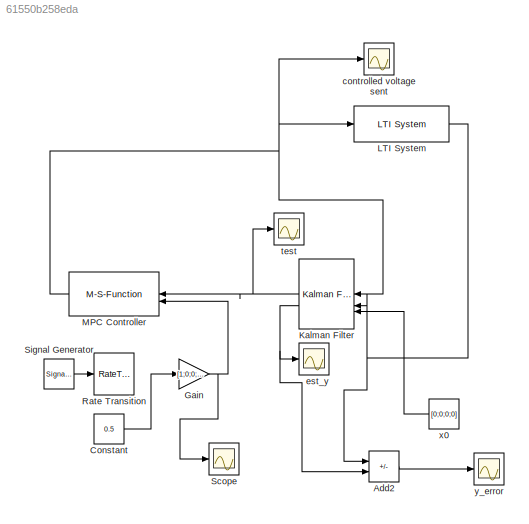
MODEL slx_61550b258eda
KIND model
CONFIG AbsTol = auto
CONFIG EnableMultiTasking = on
CONFIG FixedStep = 0.01
CONFIG MaxStep = auto
CONFIG MinStep = auto
CONFIG RelTol = 1e-3
CONFIG SampleTimeConstraint = Unconstrained
CONFIG SolverName = FixedStepDiscrete
CONFIG StartTime = 0.0
CONFIG StopTime = 10
BLOCK [Sum] Add2
  IconShape = rectangular
  Inputs = +-
BLOCK [Constant] Constant
  Value = 0.5
BLOCK [Gain] Gain
  Gain = [1;0;0;0]
BLOCK [Reference] Kalman Filter  REF=ctrlSharedLib/Kalman Filter
  SourceBlock = ctrlSharedLib/Kalman Filter
  SourceType = ctrlKalmanFilter
BLOCK [Reference] LTI System  REF=cstblocks/LTI System
  SourceBlock = cstblocks/LTI System
  SourceType = LTI Block
BLOCK [M-S-Function] MPC Controller
  FunctionName = S_function_mpc
  Parameters = fast_opt
BLOCK [RateTransition] Rate Transition
  OutPortSampleTime = h
BLOCK [Scope] Scope
  Floating = off
  NumInputPorts = 1
  ScopeSpecificationString = Simulink.scopes.TimeScopeBlockCfg('CurrentConfiguration', extmgr.ConfigurationSet(extmgr.Configuration('Core','General UI',true),extmgr.Configuration('Core','Source UI',true),extmgr.Configuration('Sources','WiredSimulink',true,'DataLoggingVariableName','ScopeData1'),extmgr.Configuration('Visuals','Time Domain',true,'SerializedDisplays',{struct('MinYLimReal','-0.0625','MaxYLimReal','0.5625','YLabel...<+1618ch>
BLOCK [SignalGenerator] Signal Generator
  Amplitude = pi/4
  Frequency = 0.15
  WaveForm = square
BLOCK [Scope] controlled voltage sent
  Floating = off
  NumInputPorts = 1
  ScopeSpecificationString = Simulink.scopes.TimeScopeBlockCfg('CurrentConfiguration', extmgr.ConfigurationSet(extmgr.Configuration('Core','General UI',true),extmgr.Configuration('Core','Source UI',true),extmgr.Configuration('Sources','WiredSimulink',true,'DataLoggingVariableName','ScopeData1'),extmgr.Configuration('Visuals','Time Domain',true,'SerializedDisplays',{struct('MinYLimReal','-2.5','MaxYLimReal','2.5','YLabelReal',...<+1547ch>
BLOCK [Scope] est_y
  Floating = off
  NumInputPorts = 1
  ScopeSpecificationString = Simulink.scopes.TimeScopeBlockCfg('CurrentConfiguration', extmgr.ConfigurationSet(extmgr.Configuration('Core','General UI',true),extmgr.Configuration('Core','Source UI',true),extmgr.Configuration('Sources','WiredSimulink',true,'DataLoggingVariableName','ScopeData1'),extmgr.Configuration('Visuals','Time Domain',true,'SerializedDisplays',{struct('MinYLimReal','-1.87665','MaxYLimReal','1.19415','YLab...<+1590ch>
BLOCK [Scope] test
  Floating = off
  NumInputPorts = 1
  ScopeSpecificationString = Simulink.scopes.TimeScopeBlockCfg('CurrentConfiguration', extmgr.ConfigurationSet(extmgr.Configuration('Core','General UI',true),extmgr.Configuration('Core','Source UI',true),extmgr.Configuration('Sources','WiredSimulink',true,'DataLoggingVariableName','ScopeData1'),extmgr.Configuration('Visuals','Time Domain',true,'SerializedDisplays',{struct('MinYLimReal','-39.2128','MaxYLimReal','39.20929','YLa...<+1598ch>
BLOCK [Constant] x0
  Value = [0;0;0;0]
BLOCK [Scope] y_error
  Floating = off
  NumInputPorts = 1
  ScopeSpecificationString = Simulink.scopes.TimeScopeBlockCfg('CurrentConfiguration', extmgr.ConfigurationSet(extmgr.Configuration('Core','General UI',true),extmgr.Configuration('Core','Source UI',true),extmgr.Configuration('Sources','WiredSimulink',true,'DataLoggingVariableName','ScopeData3'),extmgr.Configuration('Visuals','Time Domain',true,'SerializedDisplays',{struct('MinYLimReal','-0.00000000011','MaxYLimReal','0.000000...<+1585ch>
LINE Add2:1 -> y_error:1
LINE Constant:1 -> Gain:1
NET Gain:1 -> MPC Controller:2, Scope:1
NET Kalman Filter:1 -> MPC Controller:1, test:1
NET Kalman Filter:2 -> Add2:2, est_y:1
NET LTI System:1 -> Add2:1, Kalman Filter:2
NET MPC Controller:1 -> Kalman Filter:1, LTI System:1, controlled voltage sent:1
LINE Signal Generator:1 -> Rate Transition:1
LINE x0:1 -> Kalman Filter:3
note: NET lines group one-source signal fan-out (src -> all destinations, sorted); 1:1 wires keep LINE
